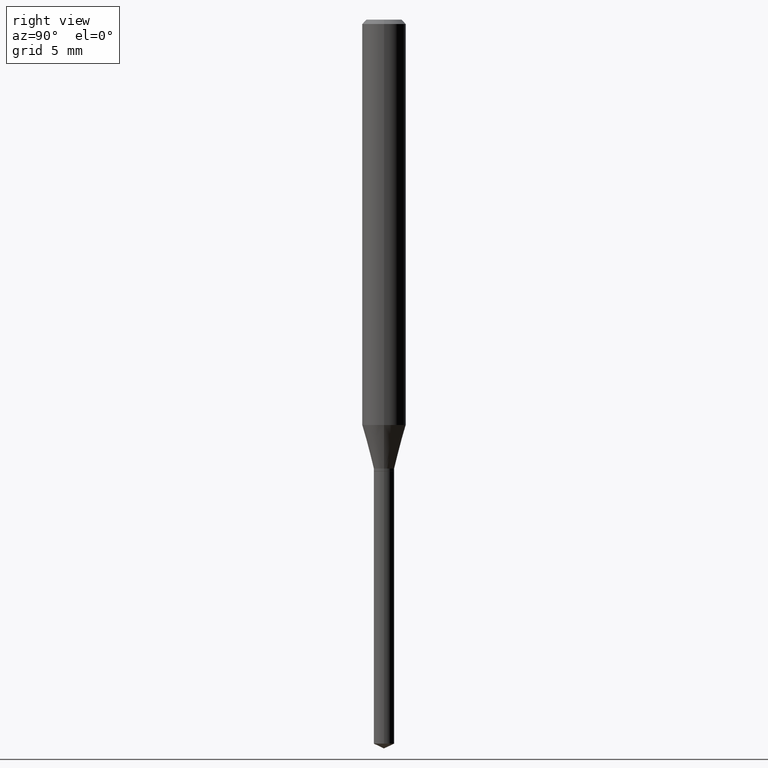
[diagram: clean part render]
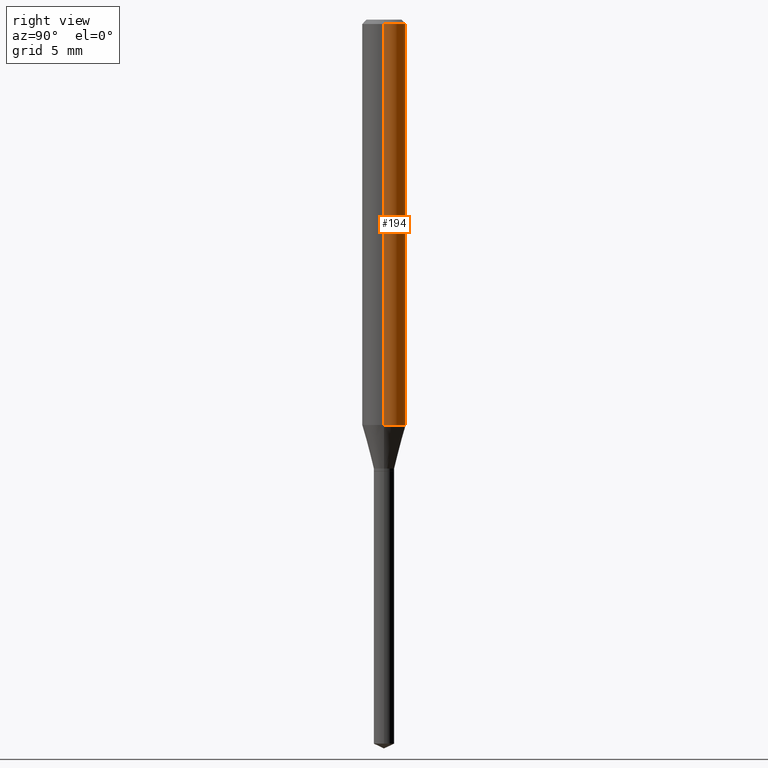
[diagram: same view with one face highlighted and labeled with its STEP entity id]
A machine part, right view. The second image highlights one B-rep face of the part: STEP entity #194.
In plain terms, the highlighted cylindrical surface (edge-blend (fillet) strip) has radius 1.4999 mm, axis along (-0, 0, 1).
Its self-contained STEP definition (entity closure, byte-faithful):
#3 = DIRECTION ( 'NONE',  ( 1.000000000000000000, -6.982962677686266711E-15, 4.876176775795936353E-29 ) ) ;
#12 = DIRECTION ( 'NONE',  ( -2.445468806185136877E-29, 3.491481338843145188E-15, 1.000000000000000000 ) ) ;
#14 = CARTESIAN_POINT ( 'NONE',  ( 0.05905000000000006771, -4.123439461173745257E-16, 2.879382386107503723E-30 ) ) ;
#15 = CARTESIAN_POINT ( 'NONE',  ( -0.05905000000000013710, -3.404086783016143258E-15, -1.095140399561580269 ) ) ;
#22 = ORIENTED_EDGE ( 'NONE', *, *, #218, .F. ) ;
#33 = DIRECTION ( 'NONE',  ( -2.445468806185136597E-29, 3.491481338843145583E-15, 1.000000000000000000 ) ) ;
#42 = VERTEX_POINT ( 'NONE', #15 ) ;
#49 = CARTESIAN_POINT ( 'NONE',  ( -0.05905000000000006771, 4.195754854663396409E-16, -2.904631170795525045E-30 ) ) ;
#54 = EDGE_CURVE ( 'NONE', #42, #165, #388, .T. ) ;
#58 = VECTOR ( 'NONE', #12, 39.37007874015748143 ) ;
#76 = EDGE_LOOP ( 'NONE', ( #439, #456, #22, #153 ) ) ;
#85 = DIRECTION ( 'NONE',  ( 1.000000000000000000, -6.982962677686264344E-15, 0.000000000000000000 ) ) ;
#95 = DIRECTION ( 'NONE',  ( -2.445468806185136597E-29, 3.491481338843145583E-15, 1.000000000000000000 ) ) ;
#118 = CARTESIAN_POINT ( 'NONE',  ( 0.05905000000000013710, -4.236006214599858855E-15, -1.095140399561580269 ) ) ;
#153 = ORIENTED_EDGE ( 'NONE', *, *, #383, .F. ) ;
#165 = VERTEX_POINT ( 'NONE', #254 ) ;
#172 = CARTESIAN_POINT ( 'NONE',  ( 0.05904999999999999832, -4.535783407291118600E-16, -0.01181000000000007044 ) ) ;
#181 = AXIS2_PLACEMENT_3D ( 'NONE', #479, #316, #295 ) ;
#186 = CARTESIAN_POINT ( 'NONE',  ( 0.000000000000000000, 0.000000000000000000, 0.000000000000000000 ) ) ;
#194 = ADVANCED_FACE ( 'NONE', ( #373 ), #345, .T. ) ;
#203 = VERTEX_POINT ( 'NONE', #118 ) ;
#216 = LINE ( 'NONE', #14, #58 ) ;
#218 = EDGE_CURVE ( 'NONE', #344, #165, #487, .T. ) ;
#237 = DIRECTION ( 'NONE',  ( -2.445468806185136877E-29, 3.491481338843145188E-15, 1.000000000000000000 ) ) ;
#254 = CARTESIAN_POINT ( 'NONE',  ( -0.05904999999999999832, -1.512872846080770352E-15, -0.01181000000000007044 ) ) ;
#295 = DIRECTION ( 'NONE',  ( 1.000000000000000000, -6.982962677686266711E-15, 0.000000000000000000 ) ) ;
#316 = DIRECTION ( 'NONE',  ( -2.445468806185136597E-29, 3.491481338843145583E-15, 1.000000000000000000 ) ) ;
#317 = CARTESIAN_POINT ( 'NONE',  ( 2.678131685520970717E-29, -3.823662268482483934E-15, -1.095140399561580269 ) ) ;
#344 = VERTEX_POINT ( 'NONE', #172 ) ;
#345 = CYLINDRICAL_SURFACE ( 'NONE', #349, 0.05905000000000006771 ) ;
#349 = AXIS2_PLACEMENT_3D ( 'NONE', #186, #33, #3 ) ;
#350 = CIRCLE ( 'NONE', #430, 0.05905000000000013710 ) ;
#357 = VECTOR ( 'NONE', #237, 39.37007874015748143 ) ;
#373 = FACE_OUTER_BOUND ( 'NONE', #76, .T. ) ;
#383 = EDGE_CURVE ( 'NONE', #203, #344, #216, .T. ) ;
#388 = LINE ( 'NONE', #49, #357 ) ;
#429 = EDGE_CURVE ( 'NONE', #203, #42, #350, .T. ) ;
#430 = AXIS2_PLACEMENT_3D ( 'NONE', #317, #95, #85 ) ;
#439 = ORIENTED_EDGE ( 'NONE', *, *, #429, .T. ) ;
#456 = ORIENTED_EDGE ( 'NONE', *, *, #54, .T. ) ;
#479 = CARTESIAN_POINT ( 'NONE',  ( 2.888098660104663766E-31, -4.123439461173779647E-17, -0.01181000000000007044 ) ) ;
#487 = CIRCLE ( 'NONE', #181, 0.05904999999999999832 ) ;